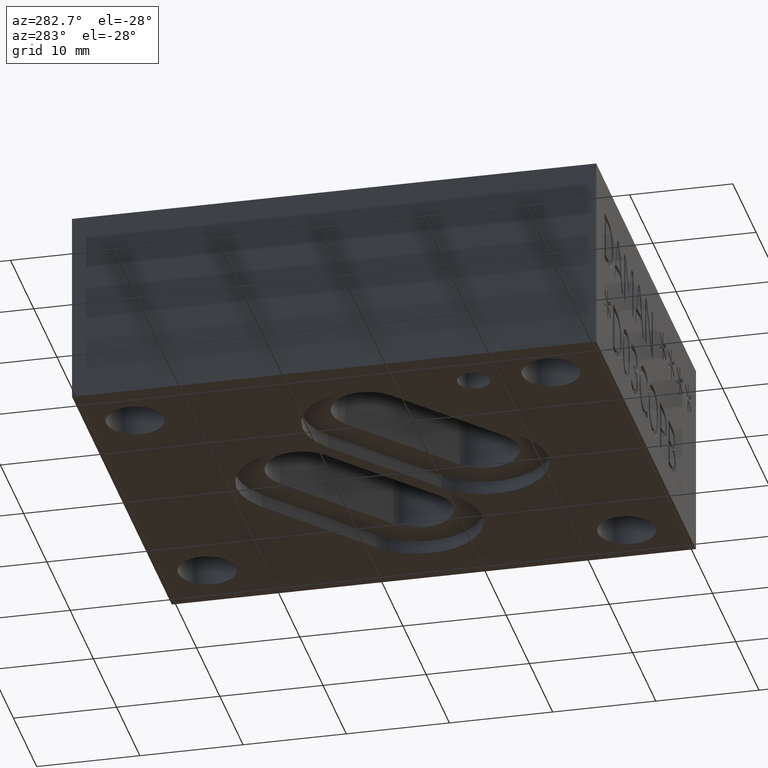
[diagram: clean part render]
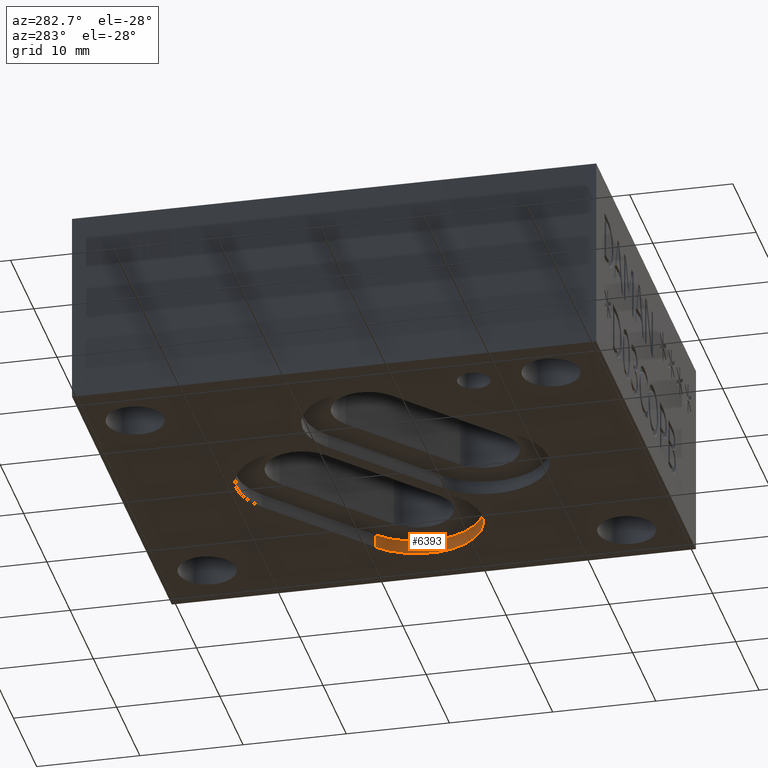
[diagram: same view with one face highlighted and labeled with its STEP entity id]
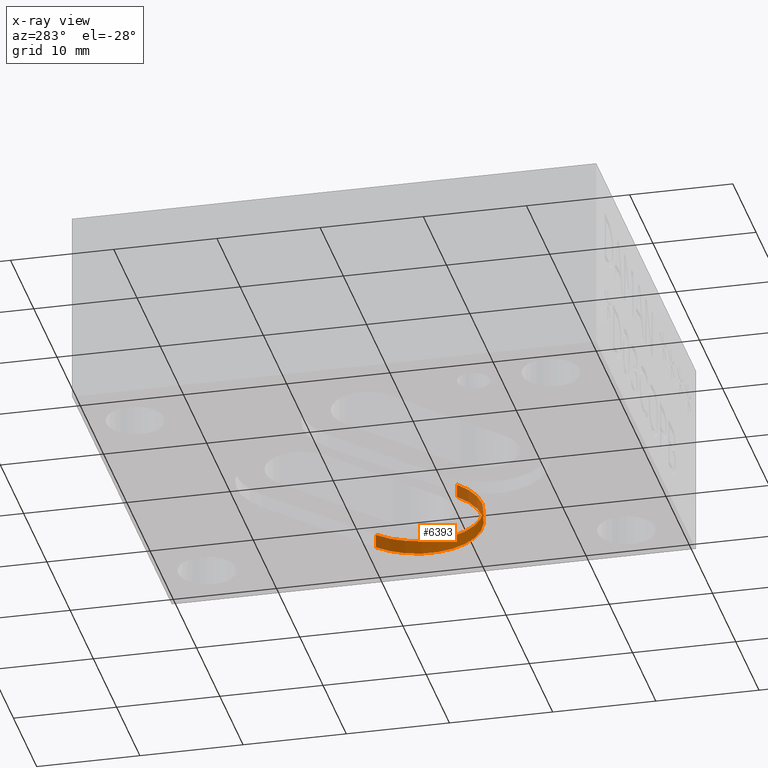
[diagram: x-ray of the same camera — body ghosted, the highlighted face saturated]
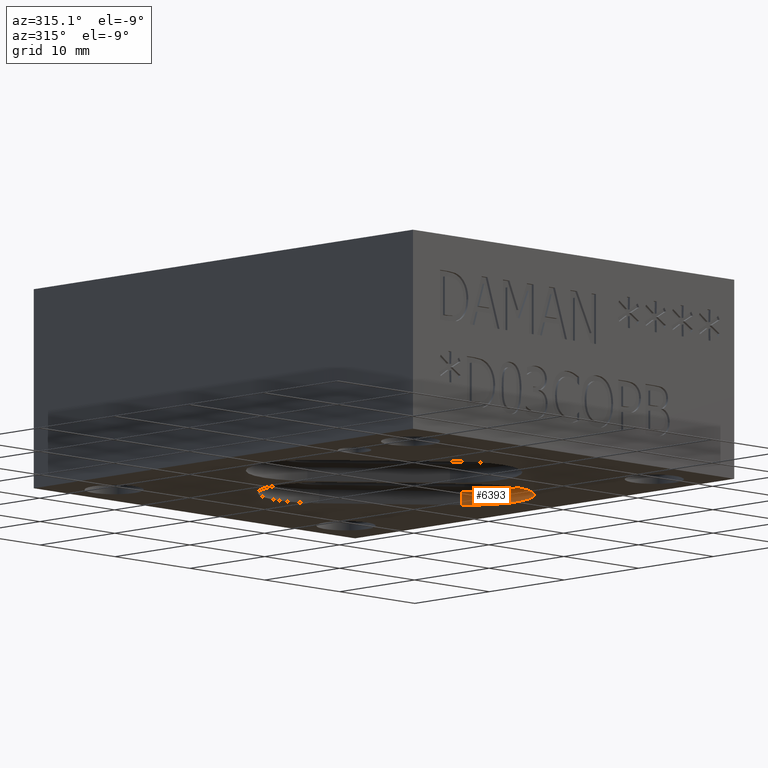
[diagram: same view with one face highlighted and labeled with its STEP entity id]
A machine part, auxiliary view. The second image highlights one B-rep face of the part: STEP entity #6393.
The next image is the same camera in x-ray: the body ghosted, the highlighted face saturated — about 0% of this face is hidden behind the body in this view.
A second angle (auxiliary view) of the same face is appended — the face is thin or edge-on in the first view.
In plain terms, the highlighted cylindrical surface (partial cylindrical patch) has radius 6.35 mm, axis along (0, 0, -1).
Its self-contained STEP definition (entity closure, byte-faithful):
#29=CIRCLE('',#6665,0.25);
#40=CIRCLE('',#6677,0.25);
#58=CYLINDRICAL_SURFACE('',#6676,0.25);
#522=FACE_OUTER_BOUND('',#893,.T.);
#893=EDGE_LOOP('',(#5752,#5753,#5754,#5755));
#1584=LINE('',#11311,#2268);
#1589=LINE('',#11321,#2273);
#2268=VECTOR('',#7819,0.052);
#2273=VECTOR('',#7826,0.052);
#3072=VERTEX_POINT('',#11308);
#3073=VERTEX_POINT('',#11310);
#3075=VERTEX_POINT('',#11315);
#3077=VERTEX_POINT('',#11319);
#3969=EDGE_CURVE('',#3073,#3072,#1584,.T.);
#3974=EDGE_CURVE('',#3077,#3075,#1589,.T.);
#3983=EDGE_CURVE('',#3073,#3077,#29,.T.);
#3994=EDGE_CURVE('',#3075,#3072,#40,.T.);
#5752=ORIENTED_EDGE('',*,*,#3974,.F.);
#5753=ORIENTED_EDGE('',*,*,#3983,.F.);
#5754=ORIENTED_EDGE('',*,*,#3969,.T.);
#5755=ORIENTED_EDGE('',*,*,#3994,.F.);
#6393=ADVANCED_FACE('',(#522),#58,.F.);
#6665=AXIS2_PLACEMENT_3D('',#11335,#7846,#7847);
#6676=AXIS2_PLACEMENT_3D('',#11356,#7868,#7869);
#6677=AXIS2_PLACEMENT_3D('',#11357,#7870,#7871);
#7819=DIRECTION('',(0.,0.,1.));
#7826=DIRECTION('',(0.,0.,1.));
#7846=DIRECTION('center_axis',(0.,0.,1.));
#7847=DIRECTION('ref_axis',(1.,0.,0.));
#7868=DIRECTION('center_axis',(0.,0.,-1.));
#7869=DIRECTION('ref_axis',(1.,0.,0.));
#7870=DIRECTION('center_axis',(0.,0.,-1.));
#7871=DIRECTION('ref_axis',(1.,0.,0.));
#11308=CARTESIAN_POINT('',(1.08938811449378,0.777260390943242,0.052));
#11310=CARTESIAN_POINT('',(1.08938811449378,0.777260390943242,0.));
#11311=CARTESIAN_POINT('',(1.08938811449378,0.777260390943242,0.));
#11315=CARTESIAN_POINT('',(1.41238038624602,1.15893551512247,0.052));
#11319=CARTESIAN_POINT('',(1.41238038624602,1.15893551512247,0.));
#11321=CARTESIAN_POINT('',(1.41238038624602,1.15893551512247,0.));
#11335=CARTESIAN_POINT('Origin',(1.251,0.968,0.));
#11356=CARTESIAN_POINT('Origin',(1.251,0.968,0.026));
#11357=CARTESIAN_POINT('Origin',(1.251,0.968,0.052));